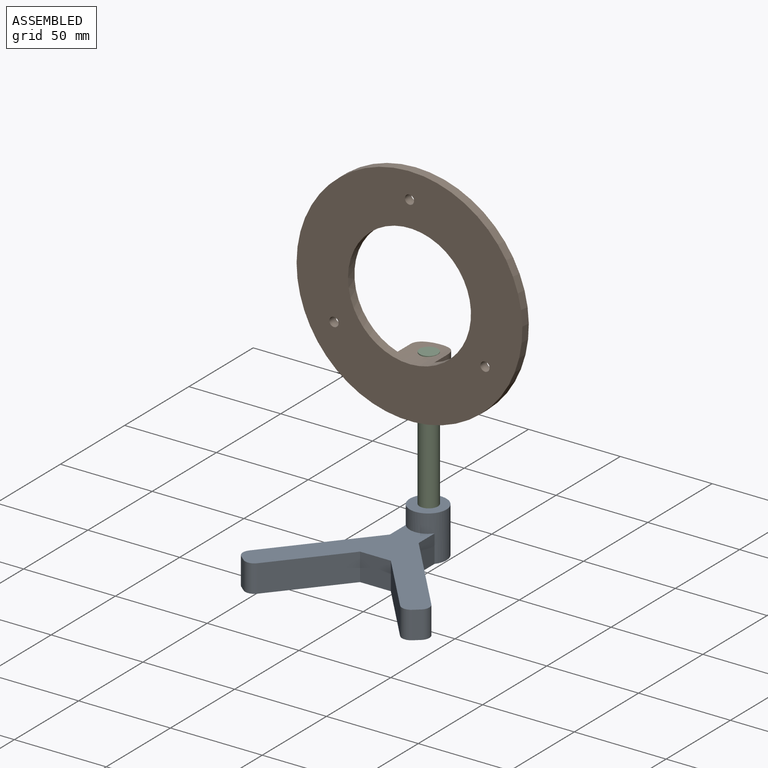
[diagram: assembled view]
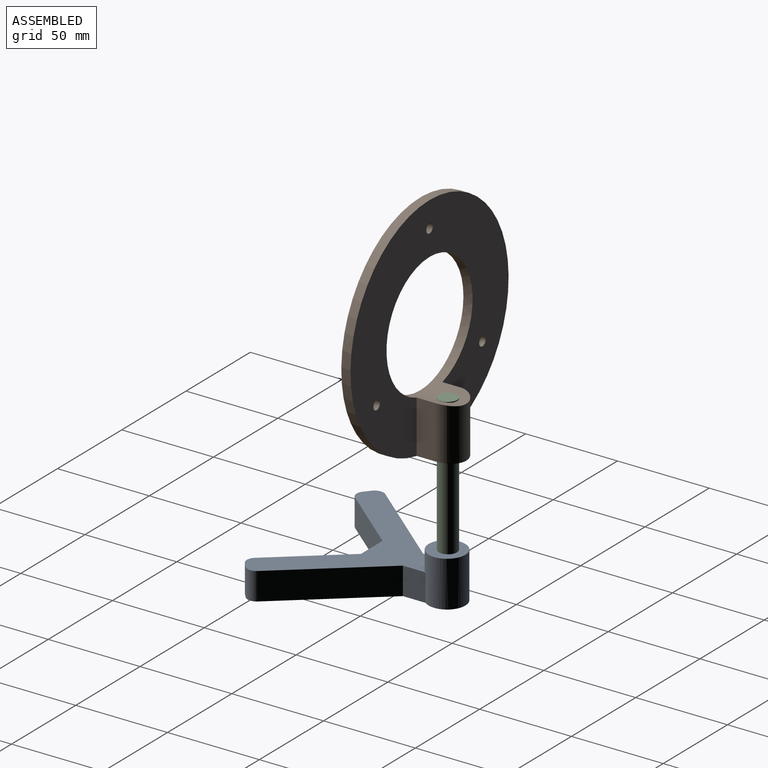
[diagram: assembled view, second angle]
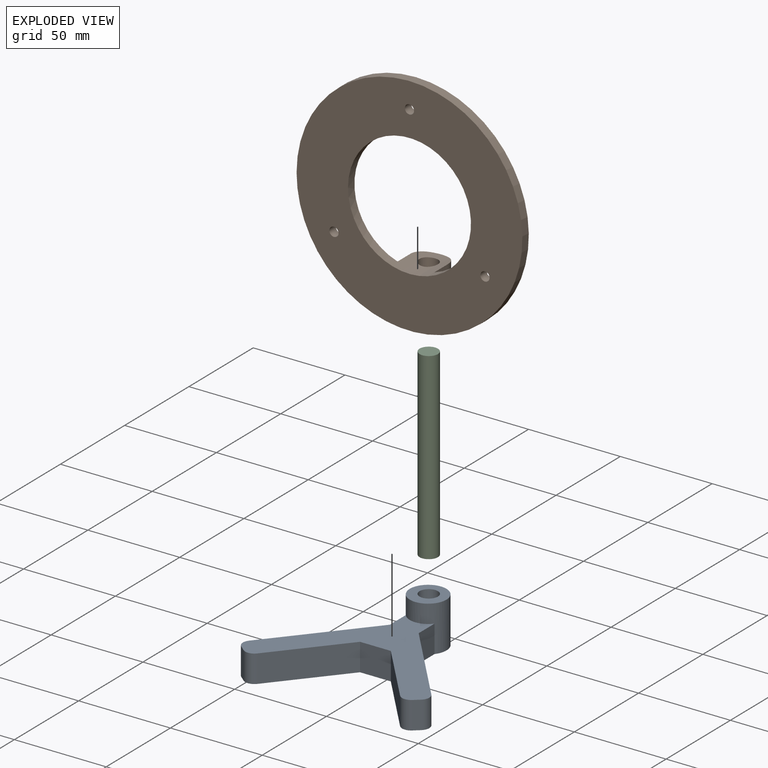
[diagram: exploded view]
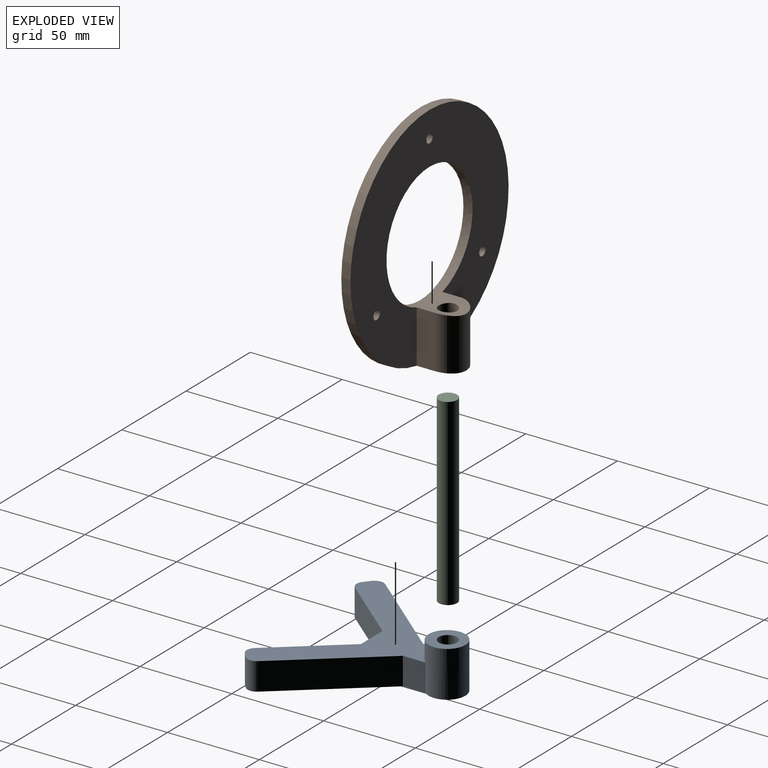
[diagram: exploded view, second angle]
ASSEMBLY  parts=3 mates=2
PART A: 18 faces, bbox 101.6x89.1x25 mm
  f0: plane 101.57x72.93mm, normal (0,0,1), area 2209.1mm2, adj f1,f2,f3,f4,f5,f6,f7,f8
  f1: cylinder r=10mm len=25mm, axis (0,0,-1), area 1300.8mm2, adj f0,f2,f11,f12,f17
  f2: plane 15x12.35mm, normal (-1,0,0), area 185.2mm2, adj f0,f1,f3,f12
  f3: plane 49.79x41.78mm, normal (-0.77,0.64,0), area 975mm2, adj f0,f2,f12,f15
  f4: plane 15x3.06mm, normal (-0.64,-0.77,0), area 60mm2, adj f0,f12,f15,f16
  f5: plane 36.35x30.5mm, normal (0.77,-0.64,0), area 711.7mm2, adj f0,f6,f12,f16
  f6: plane 16.78x15mm, normal (0,-1,0), area 251.7mm2, adj f0,f5,f7,f12
  f7: plane 36.35x30.5mm, normal (-0.77,-0.64,0), area 711.7mm2, adj f0,f6,f12,f13
  f8: plane 15x3.06mm, normal (0.64,-0.77,0), area 60mm2, adj f0,f12,f13,f14
  f9: plane 49.79x41.78mm, normal (0.77,0.64,0), area 975mm2, adj f0,f11,f12,f14
  f10: cylinder r=5mm len=25mm, axis (0,0,-1), area 785.4mm2, adj f12,f17
  f11: plane 15x12.35mm, normal (1,0,0), area 185.2mm2, adj f0,f1,f9,f12
  f12: plane 101.57x89.14mm, normal (0,0,-1), area 2444.7mm2, adj f1,f2,f3,f4,f5,f6,f7,f8
  f13: cylinder r=5mm len=15mm, axis (0,0,1), area 117.8mm2, adj f0,f7,f8,f12
  f14: cylinder r=5mm len=15mm, axis (0,0,-1), area 117.8mm2, adj f0,f8,f9,f12
  f15: cylinder r=5mm len=15mm, axis (0,0,1), area 117.8mm2, adj f0,f3,f4,f12
  f16: cylinder r=5mm len=15mm, axis (0,0,-1), area 117.8mm2, adj f0,f4,f5,f12
  f17: plane 20x20mm, normal (0,0,1), area 235.6mm2, adj f1,f10
PART B: 11 faces, bbox 123x123x25 mm
  f0: cylinder r=33.5mm len=67mm, axis (0,0,-1), area 1334.9mm2, adj f2,f6,f7,f8,f9,f10
  f1: cylinder r=61.5mm len=123mm, axis (0,0,-1), area 2211.6mm2, adj f2,f6,f7,f8,f9,f10
  f2: plane 123x122.18mm, normal (0,0,1), area 7733.1mm2, adj f0,f1,f3,f4,f5,f7,f8
  f3: cylinder r=2.5mm len=5mm, axis (0,0,-1), area 78.5mm2, adj f2,f6
  f4: cylinder r=2.5mm len=5mm, axis (0,0,-1), area 78.5mm2, adj f2,f6
  f5: cylinder r=2.5mm len=5mm, axis (0,0,-1), area 78.5mm2, adj f2,f6
  f6: plane 123x123mm, normal (0,0,-1), area 8297.7mm2, adj f0,f1,f3,f4,f5
  f7: plane 28.71x10mm, normal (1,0,0), area 287.1mm2, adj f0,f1,f2,f10
  f8: plane 28.71x10mm, normal (-1,0,0), area 287.1mm2, adj f0,f1,f2,f10
  f9: cylinder r=5mm len=28.38mm, axis (0,1,0), area 882.3mm2, adj f0,f1
  f10: cylinder r=10mm len=29.53mm, axis (0,-1,0), area 890.7mm2, adj f0,f1,f7,f8
PART C: 3 faces, bbox 10x10x100 mm
  f0: cylinder r=5mm len=100mm, axis (0,0,-1), area 3141.6mm2, adj f1,f2
  f1: plane 10x10mm, normal (0,0,1), area 78.5mm2, adj f0
  f2: plane 10x10mm, normal (0,0,-1), area 78.5mm2, adj f0
PLACE A t=(-1.48,12.65,-29.75)mm
PLACE B rot(axis=(0,-0.71,-0.71),180deg) t=(-1.48,16.69,103.2)mm
PLACE C t=(-1.48,31.69,-29.75)mm
MATE fastened B.f9 <-> C.f0  axis (0,0,1) through (-1.48,31.69,70.25)mm
MATE fastened C.f0 <-> A.f10  axis (0,0,-1) through (-1.48,31.69,-29.75)mm
